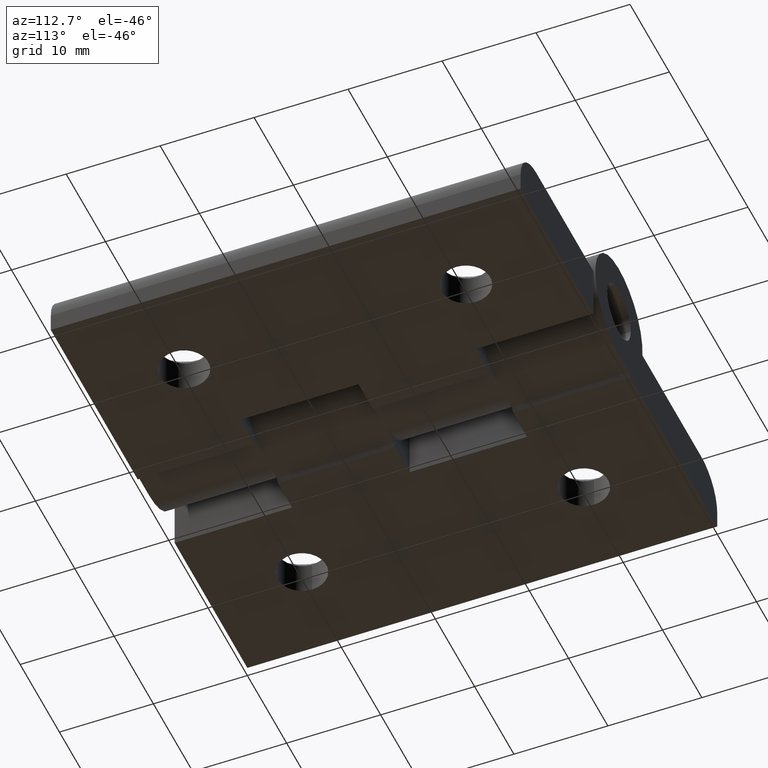
[diagram: clean part render]
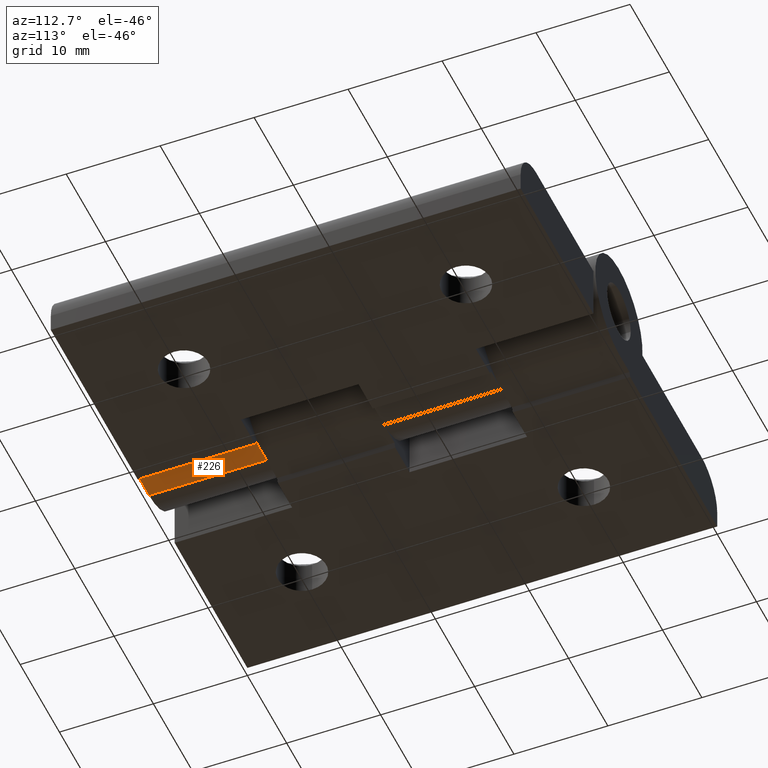
[diagram: same view with one face highlighted and labeled with its STEP entity id]
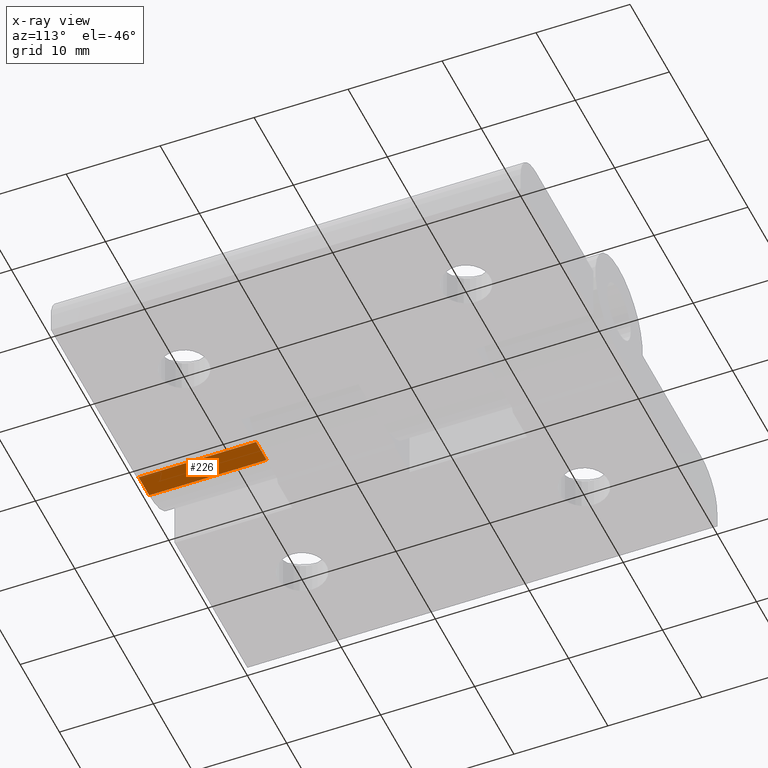
[diagram: x-ray of the same camera — body ghosted, the highlighted face saturated]
A machine part, auxiliary view. The second image highlights one B-rep face of the part: STEP entity #226.
The next image is the same camera in x-ray: the body ghosted, the highlighted face saturated — about 0% of this face is hidden behind the body in this view.
In plain terms, the highlighted planar face has unit normal (0, 0, 1).
Its self-contained STEP definition (entity closure, byte-faithful):
#136=CARTESIAN_POINT('',(-14.999969999940276,2.499994999990122,0.499998999997842));
#137=VERTEX_POINT('',#136);
#145=CARTESIAN_POINT('',(-14.999969999940276,-9.999979999960942,0.499998999997843));
#146=VERTEX_POINT('',#145);
#147=CARTESIAN_POINT('',(-14.999969999940276,-9.999979999960942,0.499998999997843));
#148=DIRECTION('',(0.0,1.0,0.0));
#149=VECTOR('',#148,12.499974999951064);
#150=LINE('',#147,#149);
#151=EDGE_CURVE('',#146,#137,#150,.T.);
#196=CARTESIAN_POINT('',(-14.999969999940276,-9.999979999960942,0.499998999997843));
#197=DIRECTION('',(0.0,0.0,1.0));
#198=DIRECTION('',(1.0,0.0,0.0));
#199=AXIS2_PLACEMENT_3D('',#196,#197,#198);
#200=PLANE('',#199);
#201=ORIENTED_EDGE('',*,*,#151,.T.);
#202=CARTESIAN_POINT('',(-12.334478214694172,2.499994999990122,0.499998999997842));
#203=VERTEX_POINT('',#202);
#204=CARTESIAN_POINT('',(-14.999969999940276,2.499994999990122,0.499998999997842));
#205=DIRECTION('',(1.0,0.0,0.0));
#206=VECTOR('',#205,2.665491785246104);
#207=LINE('',#204,#206);
#208=EDGE_CURVE('',#137,#203,#207,.T.);
#209=ORIENTED_EDGE('',*,*,#208,.T.);
#210=CARTESIAN_POINT('',(-12.334478214694172,-9.999979999960942,0.499998999997843));
#211=VERTEX_POINT('',#210);
#212=CARTESIAN_POINT('',(-12.334478214694172,-9.999979999960942,0.499998999997843));
#213=DIRECTION('',(0.0,1.0,0.0));
#214=VECTOR('',#213,12.499974999951064);
#215=LINE('',#212,#214);
#216=EDGE_CURVE('',#211,#203,#215,.T.);
#217=ORIENTED_EDGE('',*,*,#216,.F.);
#218=CARTESIAN_POINT('',(-14.999969999940276,-9.999979999960942,0.499998999997843));
#219=DIRECTION('',(1.0,0.0,0.0));
#220=VECTOR('',#219,2.665491785246104);
#221=LINE('',#218,#220);
#222=EDGE_CURVE('',#146,#211,#221,.T.);
#223=ORIENTED_EDGE('',*,*,#222,.F.);
#224=EDGE_LOOP('',(#201,#209,#217,#223));
#225=FACE_OUTER_BOUND('',#224,.T.);
#226=ADVANCED_FACE('',(#225),#200,.F.);